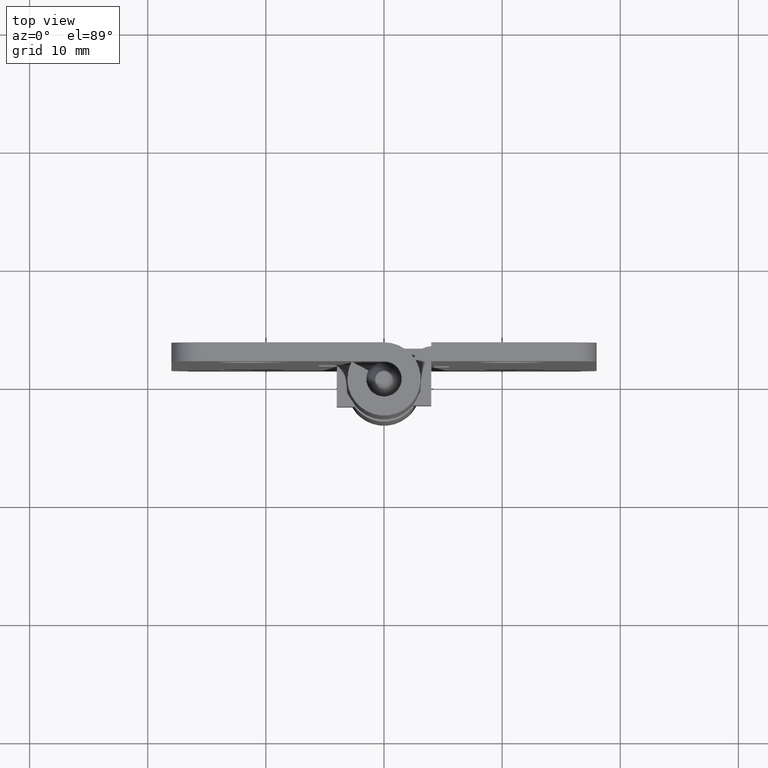
[diagram: clean part render]
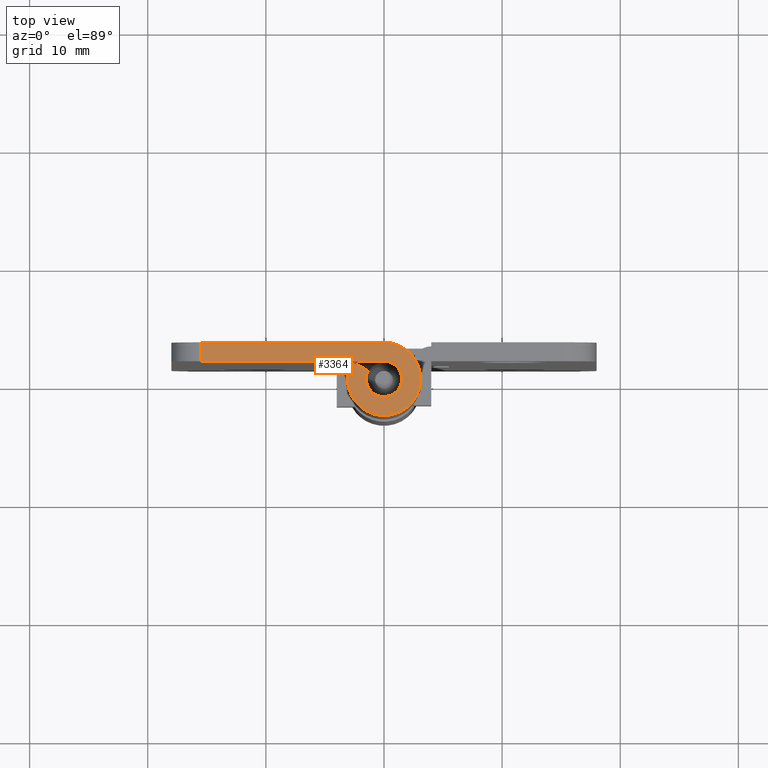
[diagram: same view with one face highlighted and labeled with its STEP entity id]
A machine part, top view. The second image highlights one B-rep face of the part: STEP entity #3364.
In plain terms, the highlighted face is a freeform B-spline surface patch.
Its self-contained STEP definition (entity closure, byte-faithful):
#3131=CARTESIAN_POINT('',(-15.500000000000000,3.099991000000000,50.000015000000012));
#3132=VERTEX_POINT('',#3131);
#3154=CARTESIAN_POINT('',(-15.500000000000000,1.500000000000000,50.000015000000012));
#3155=VERTEX_POINT('',#3154);
#3170=CARTESIAN_POINT('',(-15.500000000000000,3.099991000000000,50.000015000000012));
#3171=CARTESIAN_POINT('',(-15.500000000000000,1.500000000000000,50.000015000000012));
#3172=QUASI_UNIFORM_CURVE('',1,(#3170,#3171),.UNSPECIFIED.,.F.,.U.);
#3173=EDGE_CURVE('',#3132,#3155,#3172,.T.);
#3259=CARTESIAN_POINT('',(-16.429054860856759,-3.408837852177963,50.000015000000012));
#3260=CARTESIAN_POINT('',(4.028752995510214,-3.408837852177963,50.000015000000012));
#3261=CARTESIAN_POINT('',(-16.429054860856759,3.409640186848028,50.000015000000012));
#3262=CARTESIAN_POINT('',(4.028752995510214,3.409640186848028,50.000015000000012));
#3263=B_SPLINE_SURFACE_WITH_KNOTS('',1,1,((#3259,#3261),(#3260,#3262)),.UNSPECIFIED.,.F.,.F.,.U.,(2,2),(2,2),(0.0,20.457807856366969),(0.0,6.818478039025990),.UNSPECIFIED.);
#3264=CARTESIAN_POINT('',(-0.007469934341821,3.099991000000000,50.000015000000012));
#3265=VERTEX_POINT('',#3264);
#3266=CARTESIAN_POINT('',(-0.007469934341821,3.099991000000000,50.000015000000012));
#3267=CARTESIAN_POINT('',(-15.500000000000000,3.099991000000000,50.000015000000012));
#3268=QUASI_UNIFORM_CURVE('',1,(#3266,#3267),.UNSPECIFIED.,.F.,.U.);
#3269=EDGE_CURVE('',#3265,#3132,#3268,.T.);
#3270=ORIENTED_EDGE('',*,*,#3269,.T.);
#3271=ORIENTED_EDGE('',*,*,#3173,.T.);
#3272=CARTESIAN_POINT('',(0.0,1.500000000000000,50.000015000000012));
#3273=VERTEX_POINT('',#3272);
#3274=CARTESIAN_POINT('',(-15.500000000000000,1.500000000000000,50.000015000000012));
#3275=CARTESIAN_POINT('',(0.0,1.500000000000000,50.000015000000012));
#3276=QUASI_UNIFORM_CURVE('',1,(#3274,#3275),.UNSPECIFIED.,.F.,.U.);
#3277=EDGE_CURVE('',#3155,#3273,#3276,.T.);
#3278=ORIENTED_EDGE('',*,*,#3277,.T.);
#3279=CARTESIAN_POINT('',(0.773815440796082,-1.284994032509710,50.000015000000012));
#3280=VERTEX_POINT('',#3279);
#3281=CARTESIAN_POINT('',(0.0,1.500000000000000,50.000015000000012));
#3282=CARTESIAN_POINT('',(0.172637709115442,1.500118885248435,50.000014999999962));
#3283=CARTESIAN_POINT('',(0.467028476828869,1.448580657180141,50.000015000000133));
#3284=CARTESIAN_POINT('',(0.859813361784386,1.250481717414888,50.000014999999863));
#3285=CARTESIAN_POINT('',(1.172946981109840,0.969702649931375,50.000015000000140));
#3286=CARTESIAN_POINT('',(1.375315698255270,0.635908869400715,50.000014999999948));
#3287=CARTESIAN_POINT('',(1.493436647423198,0.256154915208036,50.000015000000047));
#3288=CARTESIAN_POINT('',(1.515392081909474,-0.123294126703962,50.000014999999969));
#3289=CARTESIAN_POINT('',(1.437109356157921,-0.462666918947805,50.000015000000033));
#3290=CARTESIAN_POINT('',(1.300380646762711,-0.769304665829697,50.000015000000040));
#3291=CARTESIAN_POINT('',(1.102991169850871,-1.044272532587598,50.000015000000012));
#3292=CARTESIAN_POINT('',(0.886920350817035,-1.216924788916969,50.000015000000033));
#3293=CARTESIAN_POINT('',(0.773815440796082,-1.284994032509710,50.000015000000012));
#3294=B_SPLINE_CURVE_WITH_KNOTS('',3,(#3281,#3282,#3283,#3284,#3285,#3286,#3287,#3288,#3289,#3290,#3291,#3292,#3293),.UNSPECIFIED.,.F.,.U.,(4,1,1,1,1,1,1,1,1,1,4),(0.000000149311086,0.517873443354245,0.883458293664066,1.309971863347953,1.766939684184917,2.041065888111886,2.498055434705047,2.894092258628607,3.076879765305939,3.503383040627877,3.899409441106791),.UNSPECIFIED.);
#3295=EDGE_CURVE('',#3273,#3280,#3294,.T.);
#3296=ORIENTED_EDGE('',*,*,#3295,.T.);
#3297=CARTESIAN_POINT('',(-1.325797621821314,0.701612903225807,50.000015000000012));
#3298=VERTEX_POINT('',#3297);
#3299=CARTESIAN_POINT('',(0.773815440796082,-1.284994032509710,50.000015000000012));
#3300=CARTESIAN_POINT('',(0.652056490636779,-1.358377615475366,50.000015000000111));
#3301=CARTESIAN_POINT('',(0.425272131452079,-1.454130702107478,50.000014999999870));
#3302=CARTESIAN_POINT('',(0.092534597439084,-1.506503751649164,50.000015000000182));
#3303=CARTESIAN_POINT('',(-0.233568471052115,-1.494531285501410,50.000014999999777));
#3304=CARTESIAN_POINT('',(-0.530523723348791,-1.415477441897481,50.000015000000332));
#3305=CARTESIAN_POINT('',(-0.820678449689854,-1.266810268417498,50.000014999999742));
#3306=CARTESIAN_POINT('',(-1.053594177816622,-1.083651194497419,50.000014999999998));
#3307=CARTESIAN_POINT('',(-1.294404209895503,-0.792718628929942,50.000014999999983));
#3308=CARTESIAN_POINT('',(-1.464941929957193,-0.418138986268827,50.000015000000097));
#3309=CARTESIAN_POINT('',(-1.515017484682657,-0.010887057021155,50.000015000000410));
#3310=CARTESIAN_POINT('',(-1.469340813257761,0.364006838480987,50.000014999998797));
#3311=CARTESIAN_POINT('',(-1.387582167220531,0.584952784384847,50.000015000001518));
#3312=CARTESIAN_POINT('',(-1.325797621821314,0.701612903225807,50.000015000000012));
#3313=B_SPLINE_CURVE_WITH_KNOTS('',3,(#3299,#3300,#3301,#3302,#3303,#3304,#3305,#3306,#3307,#3308,#3309,#3310,#3311,#3312),.UNSPECIFIED.,.F.,.U.,(4,1,1,1,1,1,1,1,1,1,1,4),(0.000000149310031,0.426480875126932,0.731133023981902,1.005318650818540,1.401360987252802,1.645088621313234,1.980153492100593,2.284789364602423,2.772234466386879,3.198738008538376,3.503383059377700,3.899409461976497),.UNSPECIFIED.);
#3314=EDGE_CURVE('',#3280,#3298,#3313,.T.);
#3315=ORIENTED_EDGE('',*,*,#3314,.T.);
#3316=CARTESIAN_POINT('',(-2.739981751764055,1.450000000000000,50.000015000000012));
#3317=VERTEX_POINT('',#3316);
#3318=CARTESIAN_POINT('',(-1.325797621821314,0.701612903225807,50.000015000000012));
#3319=CARTESIAN_POINT('',(-2.739981751764055,1.450000000000000,50.000015000000012));
#3320=QUASI_UNIFORM_CURVE('',1,(#3318,#3319),.UNSPECIFIED.,.F.,.U.);
#3321=EDGE_CURVE('',#3298,#3317,#3320,.T.);
#3322=ORIENTED_EDGE('',*,*,#3321,.T.);
#3323=CARTESIAN_POINT('',(1.602416556340482,-2.653725905206849,50.000015000000012));
#3324=VERTEX_POINT('',#3323);
#3325=CARTESIAN_POINT('',(1.602416556340482,-2.653725905206849,50.000015000000012));
#3326=CARTESIAN_POINT('',(1.377790867290395,-2.789451889316933,50.000015000000062));
#3327=CARTESIAN_POINT('',(0.903470133155838,-2.999006018909717,50.000014999999962));
#3328=CARTESIAN_POINT('',(0.173492033285865,-3.122372496938227,50.000015000000182));
#3329=CARTESIAN_POINT('',(-0.448259024907474,-3.084182912857781,50.000015000000111));
#3330=CARTESIAN_POINT('',(-1.031115714262985,-2.942155383725641,50.000014999999642));
#3331=CARTESIAN_POINT('',(-1.570816935186786,-2.699936954480652,50.000015000000609));
#3332=CARTESIAN_POINT('',(-2.063428064873811,-2.336755191410302,50.000014999999081));
#3333=CARTESIAN_POINT('',(-2.466634007089567,-1.906274313780130,50.000014999999927));
#3334=CARTESIAN_POINT('',(-2.751257749419405,-1.462046352179798,50.000015000001177));
#3335=CARTESIAN_POINT('',(-2.999624927031430,-0.870006606243653,50.000014999997269));
#3336=CARTESIAN_POINT('',(-3.117026705816880,-0.255927001937051,50.000015000001547));
#3337=CARTESIAN_POINT('',(-3.093038234911037,0.344507929676184,50.000014999999621));
#3338=CARTESIAN_POINT('',(-2.986616063340937,0.891673390259118,50.000015000000111));
#3339=CARTESIAN_POINT('',(-2.852971784730850,1.236612556952959,50.000014999999962));
#3340=CARTESIAN_POINT('',(-2.739981751764055,1.450000000000000,50.000015000000012));
#3341=B_SPLINE_CURVE_WITH_KNOTS('',3,(#3325,#3326,#3327,#3328,#3329,#3330,#3331,#3332,#3333,#3334,#3335,#3336,#3337,#3338,#3339,#3340),.UNSPECIFIED.,.F.,.U.,(4,1,1,1,1,1,1,1,1,1,1,1,1,4),(0.000000138370089,0.787321457932671,1.543192401809895,2.204566714898196,2.645483878540184,3.338366135245355,3.968243471235733,4.472089100002421,5.101985177111235,5.542903348010626,6.393247052823623,6.960136576838371,7.338061134045544,8.062410174099819),.UNSPECIFIED.);
#3342=EDGE_CURVE('',#3324,#3317,#3341,.T.);
#3343=ORIENTED_EDGE('',*,*,#3342,.F.);
#3344=CARTESIAN_POINT('',(-0.007469934341821,3.099991000000000,50.000015000000012));
#3345=CARTESIAN_POINT('',(0.286480205162891,3.100823008823629,50.000015000000438));
#3346=CARTESIAN_POINT('',(0.842986664004309,3.022288531899837,50.000014999999408));
#3347=CARTESIAN_POINT('',(1.532397604232005,2.723492302435050,50.000014999999962));
#3348=CARTESIAN_POINT('',(2.010251209744514,2.376818490841581,50.000015000000367));
#3349=CARTESIAN_POINT('',(2.352621335919184,2.034762912514396,50.000014999999927));
#3350=CARTESIAN_POINT('',(2.681220475583133,1.596851833958349,50.000014999999813));
#3351=CARTESIAN_POINT('',(2.945542217219585,1.043333775202880,50.000015000000232));
#3352=CARTESIAN_POINT('',(3.111806786553638,0.323997677896527,50.000014999999479));
#3353=CARTESIAN_POINT('',(3.107316560506572,-0.364761445559369,50.000014999999983));
#3354=CARTESIAN_POINT('',(2.961673027053748,-0.958919118986416,50.000015000000197));
#3355=CARTESIAN_POINT('',(2.741740263891682,-1.482552749565202,50.000014999999827));
#3356=CARTESIAN_POINT('',(2.350632006492296,-2.085563012256434,50.000015000000140));
#3357=CARTESIAN_POINT('',(1.899114446939345,-2.474833935061339,50.000014999999948));
#3358=CARTESIAN_POINT('',(1.602416556340482,-2.653725905206849,50.000015000000012));
#3359=B_SPLINE_CURVE_WITH_KNOTS('',3,(#3344,#3345,#3346,#3347,#3348,#3349,#3350,#3351,#3352,#3353,#3354,#3355,#3356,#3357,#3358),.UNSPECIFIED.,.F.,.U.,(4,1,1,1,1,1,1,1,1,1,1,1,4),(0.000000138371371,0.881815630802182,1.669165235227387,2.236064913233586,2.645484224646543,3.117908217937331,3.873750538025955,4.472089685064379,5.322445617245297,5.920833533626670,6.298762677595772,7.023119326010946,8.062411228879071),.UNSPECIFIED.);
#3360=EDGE_CURVE('',#3265,#3324,#3359,.T.);
#3361=ORIENTED_EDGE('',*,*,#3360,.F.);
#3362=EDGE_LOOP('',(#3270,#3271,#3278,#3296,#3315,#3322,#3343,#3361));
#3363=FACE_OUTER_BOUND('',#3362,.T.);
#3364=ADVANCED_FACE('',(#3363),#3263,.T.);